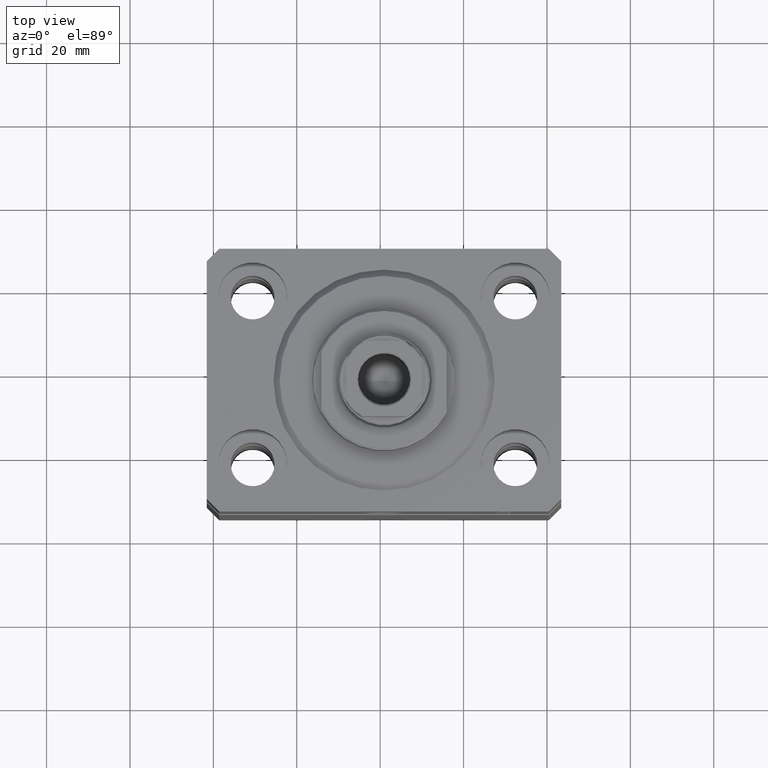
[diagram: clean part render]
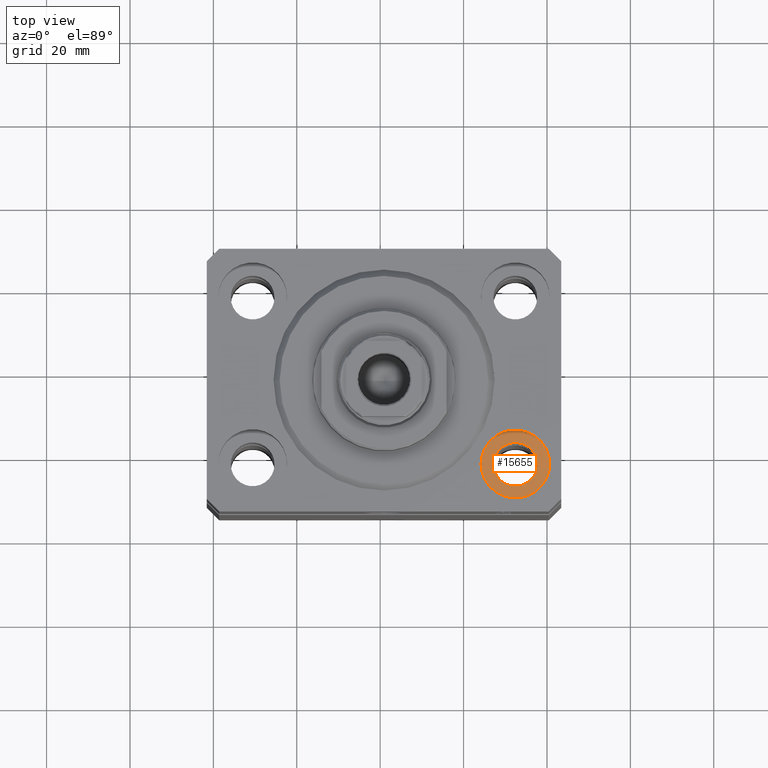
[diagram: same view with one face highlighted and labeled with its STEP entity id]
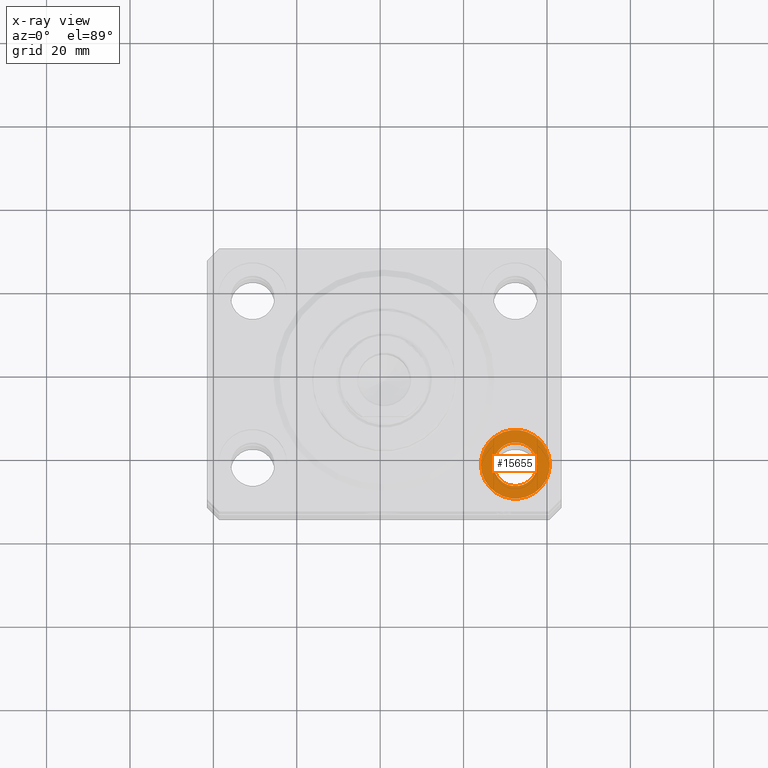
[diagram: x-ray of the same camera — body ghosted, the highlighted face saturated]
A machine part, top view. The second image highlights one B-rep face of the part: STEP entity #15655.
The next image is the same camera in x-ray: the body ghosted, the highlighted face saturated — about 0% of this face is hidden behind the body in this view.
In plain terms, the highlighted planar face has unit normal (0, 0, 1).
Its self-contained STEP definition (entity closure, byte-faithful):
#617 = CARTESIAN_POINT ( 'NONE',  ( 31.50000000000000000, -20.00000000000000000, -11.00000000000000000 ) ) ;
#990 = EDGE_LOOP ( 'NONE', ( #36585, #8844 ) ) ;
#3331 = AXIS2_PLACEMENT_3D ( 'NONE', #6130, #26537, #12262 ) ;
#4816 = DIRECTION ( 'NONE',  ( 0.000000000000000000, 0.000000000000000000, 1.000000000000000000 ) ) ;
#5354 = AXIS2_PLACEMENT_3D ( 'NONE', #617, #38724, #14444 ) ;
#5569 = CIRCLE ( 'NONE', #12076, 5.249999999999997335 ) ;
#6130 = CARTESIAN_POINT ( 'NONE',  ( 31.50000000000000000, -20.00000000000000000, -11.00000000000000000 ) ) ;
#7204 = FACE_OUTER_BOUND ( 'NONE', #27326, .T. ) ;
#7689 = VERTEX_POINT ( 'NONE', #16780 ) ;
#8844 = ORIENTED_EDGE ( 'NONE', *, *, #26458, .F. ) ;
#12076 = AXIS2_PLACEMENT_3D ( 'NONE', #14012, #33987, #30360 ) ;
#12262 = DIRECTION ( 'NONE',  ( 1.000000000000000000, 0.000000000000000000, 0.000000000000000000 ) ) ;
#12830 = EDGE_CURVE ( 'NONE', #24411, #7689, #20477, .T. ) ;
#14012 = CARTESIAN_POINT ( 'NONE',  ( 31.50000000000000000, -20.00000000000000000, -11.00000000000000000 ) ) ;
#14444 = DIRECTION ( 'NONE',  ( 1.000000000000000000, 0.000000000000000000, -0.000000000000000000 ) ) ;
#15238 = DIRECTION ( 'NONE',  ( 1.000000000000000000, 0.000000000000000000, 0.000000000000000000 ) ) ;
#15557 = VERTEX_POINT ( 'NONE', #23146 ) ;
#15655 = ADVANCED_FACE ( 'NONE', ( #31912, #7204 ), #40834, .T. ) ;
#16780 = CARTESIAN_POINT ( 'NONE',  ( 39.74999999999999289, -20.00000000000000000, -11.00000000000000000 ) ) ;
#17845 = DIRECTION ( 'NONE',  ( 1.000000000000000000, 0.000000000000000000, 0.000000000000000000 ) ) ;
#18319 = AXIS2_PLACEMENT_3D ( 'NONE', #24645, #38480, #17845 ) ;
#20477 = CIRCLE ( 'NONE', #18319, 8.249999999999992895 ) ;
#21737 = ORIENTED_EDGE ( 'NONE', *, *, #12830, .T. ) ;
#22885 = CIRCLE ( 'NONE', #3331, 8.249999999999992895 ) ;
#23146 = CARTESIAN_POINT ( 'NONE',  ( 36.75000000000000000, -20.00000000000000000, -11.00000000000000000 ) ) ;
#23344 = ORIENTED_EDGE ( 'NONE', *, *, #30896, .T. ) ;
#24411 = VERTEX_POINT ( 'NONE', #34676 ) ;
#24645 = CARTESIAN_POINT ( 'NONE',  ( 31.50000000000000000, -20.00000000000000000, -11.00000000000000000 ) ) ;
#26458 = EDGE_CURVE ( 'NONE', #26653, #15557, #34349, .T. ) ;
#26537 = DIRECTION ( 'NONE',  ( 0.000000000000000000, 0.000000000000000000, 1.000000000000000000 ) ) ;
#26653 = VERTEX_POINT ( 'NONE', #29637 ) ;
#27326 = EDGE_LOOP ( 'NONE', ( #23344, #21737 ) ) ;
#29637 = CARTESIAN_POINT ( 'NONE',  ( 26.25000000000000355, -20.00000000000000000, -11.00000000000000000 ) ) ;
#30360 = DIRECTION ( 'NONE',  ( 1.000000000000000000, 0.000000000000000000, 0.000000000000000000 ) ) ;
#30896 = EDGE_CURVE ( 'NONE', #7689, #24411, #22885, .T. ) ;
#31912 = FACE_BOUND ( 'NONE', #990, .T. ) ;
#32475 = CARTESIAN_POINT ( 'NONE',  ( 31.50000000000000000, -20.00000000000000000, -11.00000000000000000 ) ) ;
#33987 = DIRECTION ( 'NONE',  ( 0.000000000000000000, 0.000000000000000000, 1.000000000000000000 ) ) ;
#34349 = CIRCLE ( 'NONE', #43049, 5.249999999999997335 ) ;
#34676 = CARTESIAN_POINT ( 'NONE',  ( 23.25000000000000355, -20.00000000000000000, -11.00000000000000000 ) ) ;
#36585 = ORIENTED_EDGE ( 'NONE', *, *, #37045, .F. ) ;
#37045 = EDGE_CURVE ( 'NONE', #15557, #26653, #5569, .T. ) ;
#38480 = DIRECTION ( 'NONE',  ( 0.000000000000000000, 0.000000000000000000, 1.000000000000000000 ) ) ;
#38724 = DIRECTION ( 'NONE',  ( 0.000000000000000000, 0.000000000000000000, 1.000000000000000000 ) ) ;
#40834 = PLANE ( 'NONE',  #5354 ) ;
#43049 = AXIS2_PLACEMENT_3D ( 'NONE', #32475, #4816, #15238 ) ;